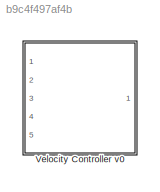
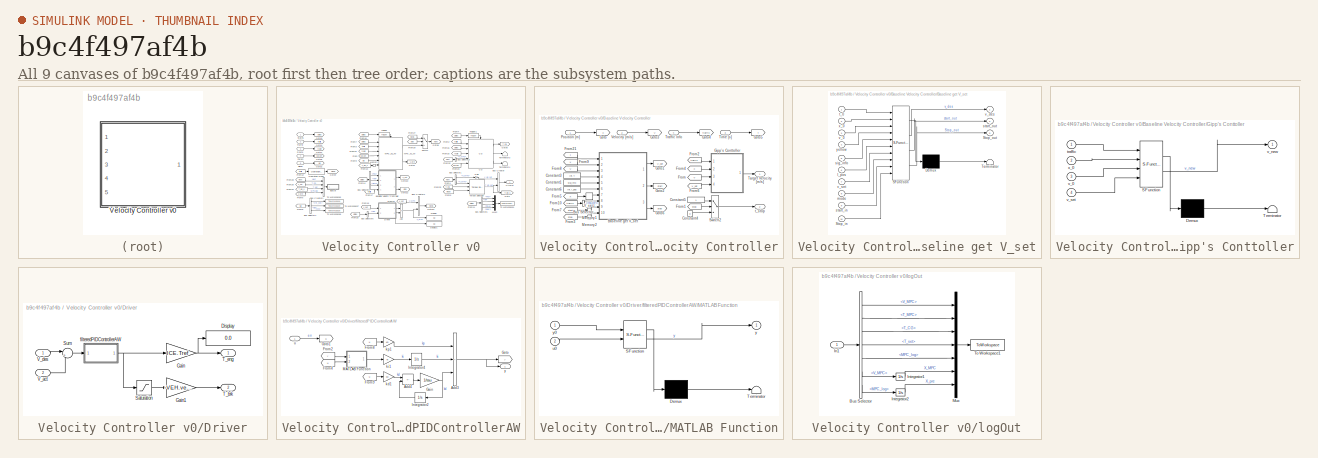
[diagram: thumbnail index - all 9 canvases of the model, root first then tree order]
MODEL slx_b9c4f497af4b
KIND library
CONFIG AbsTol = auto
CONFIG EnableMultiTasking = off
CONFIG FixedStep = auto
CONFIG MaxStep = auto
CONFIG MinStep = auto
CONFIG RelTol = 1e-3
CONFIG SampleTimeConstraint = Unconstrained
CONFIG Solver = VariableStepAuto
CONFIG SolverName = VariableStepAuto
CONFIG StartTime = 0.0
CONFIG StopTime = 10.0
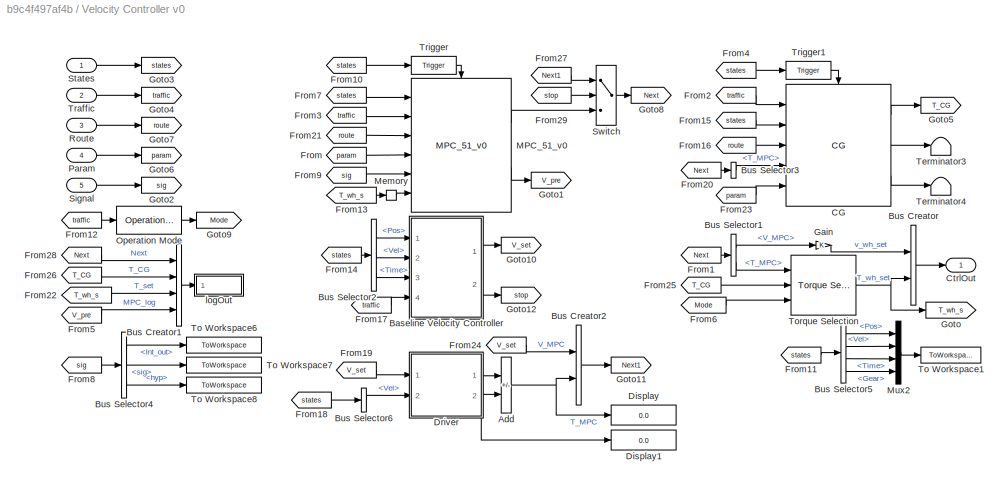
BLOCK [SubSystem] Velocity Controller v0
  Ports = [5, 1]
  RequestExecContextInheritance = off
  TreatAsAtomicUnit = on
BLOCK [Sum] Velocity Controller v0/Add
  IconShape = rectangular
  Inputs = +-
  Ports = [2, 1]
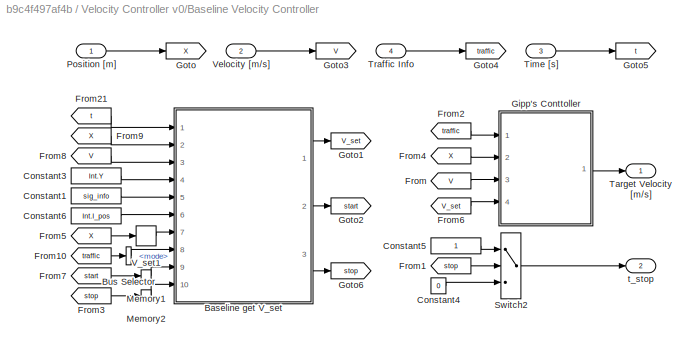
BLOCK [SubSystem] Velocity Controller v0/Baseline Velocity Controller
  Ports = [4, 2]
  RequestExecContextInheritance = off
BLOCK [SubSystem] Velocity Controller v0/Baseline Velocity Controller/Baseline get V_set
  ErrorFcn = Stateflow.Translate.translate
  NameLocation = top
  PermitHierarchicalResolution = ExplicitOnly
  Ports = [10, 3]
  RequestExecContextInheritance = off
  SFBlockType = MATLAB Function
  TreatAsAtomicUnit = on
BLOCK [Demux] Velocity Controller v0/Baseline Velocity Controller/Baseline get V_set/ Demux 
  Outputs = 1
  Ports = [1, 1]
BLOCK [S-Function] Velocity Controller v0/Baseline Velocity Controller/Baseline get V_set/ SFunction 
  EnableBusSupport = off
  FunctionName = sf_sfun
  PortCounts = [10 4]
  Ports = [10, 4]
  SFcnIsStateOwnerBlock = off
  SFunctionDeploymentMode = off
  Tag = Stateflow S-Function 3
BLOCK [Terminator] Velocity Controller v0/Baseline Velocity Controller/Baseline get V_set/ Terminator 
BLOCK [Inport] Velocity Controller v0/Baseline Velocity Controller/Baseline get V_set/I_pos
  Port = 6
BLOCK [Inport] Velocity Controller v0/Baseline Velocity Controller/Baseline get V_set/Stop_in
  Port = 10
BLOCK [Outport] Velocity Controller v0/Baseline Velocity Controller/Baseline get V_set/Stop_out
  Port = 3
  VectorParamsAs1DForOutWhenUnconnected = off
BLOCK [Inport] Velocity Controller v0/Baseline Velocity Controller/Baseline get V_set/mode
  Port = 8
BLOCK [Inport] Velocity Controller v0/Baseline Velocity Controller/Baseline get V_set/sig_info
  Port = 5
BLOCK [Inport] Velocity Controller v0/Baseline Velocity Controller/Baseline get V_set/start_in
  Port = 9
BLOCK [Outport] Velocity Controller v0/Baseline Velocity Controller/Baseline get V_set/start_out
  Port = 2
  VectorParamsAs1DForOutWhenUnconnected = off
BLOCK [Inport] Velocity Controller v0/Baseline Velocity Controller/Baseline get V_set/t_0
BLOCK [Inport] Velocity Controller v0/Baseline Velocity Controller/Baseline get V_set/v_0
  Port = 3
BLOCK [Outport] Velocity Controller v0/Baseline Velocity Controller/Baseline get V_set/v_des
  VectorParamsAs1DForOutWhenUnconnected = off
BLOCK [Inport] Velocity Controller v0/Baseline Velocity Controller/Baseline get V_set/v_set
  Port = 7
BLOCK [Inport] Velocity Controller v0/Baseline Velocity Controller/Baseline get V_set/x_0
  Port = 2
BLOCK [Inport] Velocity Controller v0/Baseline Velocity Controller/Baseline get V_set/yellow
  Port = 4
BLOCK [BusSelector] Velocity Controller v0/Baseline Velocity Controller/Bus Selector
  OutputSignals = mode
  Ports = [1, 1]
BLOCK [Constant] Velocity Controller v0/Baseline Velocity Controller/Constant1
  Value = sig_info
BLOCK [Constant] Velocity Controller v0/Baseline Velocity Controller/Constant3
  Value = Int.Y
BLOCK [Constant] Velocity Controller v0/Baseline Velocity Controller/Constant4
  Value = 0
BLOCK [Constant] Velocity Controller v0/Baseline Velocity Controller/Constant5
BLOCK [Constant] Velocity Controller v0/Baseline Velocity Controller/Constant6
  Value = Int.I_pos
BLOCK [From] Velocity Controller v0/Baseline Velocity Controller/From
  GotoTag = V
BLOCK [From] Velocity Controller v0/Baseline Velocity Controller/From1
  GotoTag = stop
BLOCK [From] Velocity Controller v0/Baseline Velocity Controller/From10
  GotoTag = traffic
BLOCK [From] Velocity Controller v0/Baseline Velocity Controller/From2
  GotoTag = traffic
BLOCK [From] Velocity Controller v0/Baseline Velocity Controller/From21
  GotoTag = t
BLOCK [From] Velocity Controller v0/Baseline Velocity Controller/From3
  GotoTag = stop
BLOCK [From] Velocity Controller v0/Baseline Velocity Controller/From4
  GotoTag = X
BLOCK [From] Velocity Controller v0/Baseline Velocity Controller/From5
  GotoTag = X
BLOCK [From] Velocity Controller v0/Baseline Velocity Controller/From6
  GotoTag = V_set
BLOCK [From] Velocity Controller v0/Baseline Velocity Controller/From7
  GotoTag = start
BLOCK [From] Velocity Controller v0/Baseline Velocity Controller/From8
  GotoTag = V
BLOCK [From] Velocity Controller v0/Baseline Velocity Controller/From9
  GotoTag = X
BLOCK [SubSystem] Velocity Controller v0/Baseline Velocity Controller/Gipp's Conttoller
  ErrorFcn = Stateflow.Translate.translate
  NameLocation = top
  PermitHierarchicalResolution = ExplicitOnly
  Ports = [4, 1]
  RequestExecContextInheritance = off
  SFBlockType = MATLAB Function
  TreatAsAtomicUnit = on
BLOCK [Demux] Velocity Controller v0/Baseline Velocity Controller/Gipp's Conttoller/ Demux 
  Outputs = 1
  Ports = [1, 1]
BLOCK [S-Function] Velocity Controller v0/Baseline Velocity Controller/Gipp's Conttoller/ SFunction 
  EnableBusSupport = off
  FunctionName = sf_sfun
  PortCounts = [4 2]
  Ports = [4, 2]
  SFcnIsStateOwnerBlock = off
  SFunctionDeploymentMode = off
  Tag = Stateflow S-Function 19
BLOCK [Terminator] Velocity Controller v0/Baseline Velocity Controller/Gipp's Conttoller/ Terminator 
BLOCK [Inport] Velocity Controller v0/Baseline Velocity Controller/Gipp's Conttoller/traffic
BLOCK [Inport] Velocity Controller v0/Baseline Velocity Controller/Gipp's Conttoller/v_0
  Port = 3
BLOCK [Outport] Velocity Controller v0/Baseline Velocity Controller/Gipp's Conttoller/v_new
  VectorParamsAs1DForOutWhenUnconnected = off
BLOCK [Inport] Velocity Controller v0/Baseline Velocity Controller/Gipp's Conttoller/v_set
  Port = 4
BLOCK [Inport] Velocity Controller v0/Baseline Velocity Controller/Gipp's Conttoller/x_0
  Port = 2
BLOCK [Goto] Velocity Controller v0/Baseline Velocity Controller/Goto
  GotoTag = X
BLOCK [Goto] Velocity Controller v0/Baseline Velocity Controller/Goto1
  GotoTag = V_set
BLOCK [Goto] Velocity Controller v0/Baseline Velocity Controller/Goto2
  GotoTag = start
BLOCK [Goto] Velocity Controller v0/Baseline Velocity Controller/Goto3
  GotoTag = V
BLOCK [Goto] Velocity Controller v0/Baseline Velocity Controller/Goto4
  GotoTag = traffic
BLOCK [Goto] Velocity Controller v0/Baseline Velocity Controller/Goto5
  GotoTag = t
BLOCK [Goto] Velocity Controller v0/Baseline Velocity Controller/Goto6
  GotoTag = stop
BLOCK [Memory] Velocity Controller v0/Baseline Velocity Controller/Memory1
  InitialCondition = [0 0]
BLOCK [Memory] Velocity Controller v0/Baseline Velocity Controller/Memory2
BLOCK [Inport] Velocity Controller v0/Baseline Velocity Controller/Position [m]
BLOCK [Switch] Velocity Controller v0/Baseline Velocity Controller/Switch2
  Criteria = u2 ~= 0
  InputSameDT = off
  SaturateOnIntegerOverflow = off
BLOCK [Outport] Velocity Controller v0/Baseline Velocity Controller/Target Velocity [m//s]
  VectorParamsAs1DForOutWhenUnconnected = off
BLOCK [Inport] Velocity Controller v0/Baseline Velocity Controller/Time [s]
  Port = 3
BLOCK [Inport] Velocity Controller v0/Baseline Velocity Controller/Traffic Info
  Port = 4
BLOCK [Lookup_n-D] Velocity Controller v0/Baseline Velocity Controller/V_set1
  BreakpointsForDimension1 = UNCC.X_vec
  ExtrapMethod = Clip
  InterpMethod = Flat
  NumberOfTableDimensions = 1
  Ports = [1, 1]
  Table = UNCC.V_lim
BLOCK [Inport] Velocity Controller v0/Baseline Velocity Controller/Velocity [m//s]
  Port = 2
BLOCK [Outport] Velocity Controller v0/Baseline Velocity Controller/t_stop
  Port = 2
  VectorParamsAs1DForOutWhenUnconnected = off
BLOCK [BusCreator] Velocity Controller v0/Bus Creator
  DisplayOption = bar
  InheritFromInputs = on
  Inputs = 2
  Ports = [2, 1]
BLOCK [BusCreator] Velocity Controller v0/Bus Creator1
  DisplayOption = bar
  InheritFromInputs = on
  Inputs = 4
  Ports = [4, 1]
BLOCK [BusCreator] Velocity Controller v0/Bus Creator2
  DisplayOption = bar
  InheritFromInputs = on
  Inputs = 2
  Ports = [2, 1]
BLOCK [BusSelector] Velocity Controller v0/Bus Selector1
  OutputSignals = V_MPC,T_MPC
  Ports = [1, 2]
BLOCK [BusSelector] Velocity Controller v0/Bus Selector2
  OutputSignals = Pos,Vel,Time
  Ports = [1, 3]
BLOCK [BusSelector] Velocity Controller v0/Bus Selector3
  OutputSignals = T_MPC
  Ports = [1, 1]
BLOCK [BusSelector] Velocity Controller v0/Bus Selector4
  OutputSignals = Int_out,sig,hyp
  Ports = [1, 3]
BLOCK [BusSelector] Velocity Controller v0/Bus Selector5
  OutputSignals = Pos,Vel,Time,Gear
  Ports = [1, 4]
BLOCK [BusSelector] Velocity Controller v0/Bus Selector6
  OutputSignals = Vel
  Ports = [1, 1]
BLOCK [Reference] Velocity Controller v0/CG  REF=Thesis_Sublibraries/CG
  Ports = [5, 3, 0, 1]
  SourceBlock = Thesis_Sublibraries/CG
BLOCK [Outport] Velocity Controller v0/CtrlOut
  VectorParamsAs1DForOutWhenUnconnected = off
BLOCK [Display] Velocity Controller v0/Display
  Decimation = 1
  Ports = [1]
BLOCK [Display] Velocity Controller v0/Display1
  Decimation = 1
  Ports = [1]
BLOCK [SubSystem] Velocity Controller v0/Driver
  Ports = [2, 2]
  RequestExecContextInheritance = off
BLOCK [Display] Velocity Controller v0/Driver/Display
  Decimation = 1
  Ports = [1]
BLOCK [Gain] Velocity Controller v0/Driver/Gain
  Gain = ICE.Tref
BLOCK [Gain] Velocity Controller v0/Driver/Gain1
  Gain = -VEH.vehicleMass*9.8*VEH.mu*VEH.tireRad
BLOCK [Saturate] Velocity Controller v0/Driver/Saturation
  LowerLimit = -1
  UpperLimit = 0
BLOCK [Sum] Velocity Controller v0/Driver/Sum
  Inputs = |+-
  Ports = [2, 1]
BLOCK [Outport] Velocity Controller v0/Driver/T_brk
  Port = 2
  VectorParamsAs1DForOutWhenUnconnected = off
BLOCK [Outport] Velocity Controller v0/Driver/T_eng
  VectorParamsAs1DForOutWhenUnconnected = off
BLOCK [Inport] Velocity Controller v0/Driver/V_act
  Port = 2
BLOCK [Inport] Velocity Controller v0/Driver/V_des
BLOCK [SubSystem] Velocity Controller v0/Driver/filteredPIDControllerAW
  Ports = [1, 1]
  RequestExecContextInheritance = off
BLOCK [Sum] Velocity Controller v0/Driver/filteredPIDControllerAW/Add3
  IconShape = rectangular
  Inputs = +++
  Ports = [3, 1]
BLOCK [Sum] Velocity Controller v0/Driver/filteredPIDControllerAW/Add4
  IconShape = rectangular
  Inputs = +-
  Ports = [2, 1]
BLOCK [From] Velocity Controller v0/Driver/filteredPIDControllerAW/From2
  GotoTag = y
BLOCK [From] Velocity Controller v0/Driver/filteredPIDControllerAW/From4
  GotoTag = u
BLOCK [From] Velocity Controller v0/Driver/filteredPIDControllerAW/From8
  GotoTag = u
BLOCK [From] Velocity Controller v0/Driver/filteredPIDControllerAW/From9
  GotoTag = u
BLOCK [Gain] Velocity Controller v0/Driver/filteredPIDControllerAW/Gain
  Gain = 1/tau
BLOCK [Goto] Velocity Controller v0/Driver/filteredPIDControllerAW/Goto
  GotoTag = y
BLOCK [Goto] Velocity Controller v0/Driver/filteredPIDControllerAW/Goto1
  GotoTag = u
BLOCK [Integrator] Velocity Controller v0/Driver/filteredPIDControllerAW/Integrator2
  Ports = [1, 1]
BLOCK [Integrator] Velocity Controller v0/Driver/filteredPIDControllerAW/Integrator4
  Ports = [1, 1]
BLOCK [SubSystem] Velocity Controller v0/Driver/filteredPIDControllerAW/MATLAB Function
  ErrorFcn = Stateflow.Translate.translate
  PermitHierarchicalResolution = ExplicitOnly
  Ports = [2, 1]
  RequestExecContextInheritance = off
  SFBlockType = MATLAB Function
  TreatAsAtomicUnit = on
BLOCK [Demux] Velocity Controller v0/Driver/filteredPIDControllerAW/MATLAB Function/ Demux 
  Outputs = 1
  Ports = [1, 1]
BLOCK [S-Function] Velocity Controller v0/Driver/filteredPIDControllerAW/MATLAB Function/ SFunction 
  EnableBusSupport = on
  FunctionName = sf_sfun
  Parameters = cMax,cMin
  PortCounts = [2 2]
  Ports = [2, 2]
  SFcnIsStateOwnerBlock = off
  SFunctionDeploymentMode = off
  Tag = Stateflow S-Function 1
BLOCK [Terminator] Velocity Controller v0/Driver/filteredPIDControllerAW/MATLAB Function/ Terminator 
BLOCK [Inport] Velocity Controller v0/Driver/filteredPIDControllerAW/MATLAB Function/u0
  Port = 2
BLOCK [Outport] Velocity Controller v0/Driver/filteredPIDControllerAW/MATLAB Function/y
BLOCK [Inport] Velocity Controller v0/Driver/filteredPIDControllerAW/MATLAB Function/y0
BLOCK [Gain] Velocity Controller v0/Driver/filteredPIDControllerAW/kd1
  Gain = kd
BLOCK [Gain] Velocity Controller v0/Driver/filteredPIDControllerAW/ki1
  Gain = ki
BLOCK [Gain] Velocity Controller v0/Driver/filteredPIDControllerAW/kp1
  Gain = kp
BLOCK [Inport] Velocity Controller v0/Driver/filteredPIDControllerAW/u
  PortDimensions = 1
BLOCK [Outport] Velocity Controller v0/Driver/filteredPIDControllerAW/y
  PortDimensions = 1
  VectorParamsAs1DForOutWhenUnconnected = off
BLOCK [From] Velocity Controller v0/From
  GotoTag = param
BLOCK [From] Velocity Controller v0/From1
  GotoTag = Next
BLOCK [From] Velocity Controller v0/From10
  GotoTag = states
BLOCK [From] Velocity Controller v0/From11
  GotoTag = states
BLOCK [From] Velocity Controller v0/From12
  GotoTag = traffic
BLOCK [From] Velocity Controller v0/From13
  GotoTag = T_wh_s
BLOCK [From] Velocity Controller v0/From14
  GotoTag = states
BLOCK [From] Velocity Controller v0/From15
  GotoTag = states
BLOCK [From] Velocity Controller v0/From16
  GotoTag = route
BLOCK [From] Velocity Controller v0/From17
  GotoTag = traffic
BLOCK [From] Velocity Controller v0/From18
  GotoTag = states
BLOCK [From] Velocity Controller v0/From19
  GotoTag = V_set
BLOCK [From] Velocity Controller v0/From2
  GotoTag = traffic
BLOCK [From] Velocity Controller v0/From20
  GotoTag = Next
BLOCK [From] Velocity Controller v0/From21
  GotoTag = route
BLOCK [From] Velocity Controller v0/From22
  GotoTag = T_wh_s
BLOCK [From] Velocity Controller v0/From23
  GotoTag = param
BLOCK [From] Velocity Controller v0/From24
  GotoTag = V_set
BLOCK [From] Velocity Controller v0/From25
  GotoTag = T_CG
BLOCK [From] Velocity Controller v0/From26
  GotoTag = T_CG
BLOCK [From] Velocity Controller v0/From27
  GotoTag = Next1
BLOCK [From] Velocity Controller v0/From28
  GotoTag = Next
BLOCK [From] Velocity Controller v0/From29
  GotoTag = stop
BLOCK [From] Velocity Controller v0/From3
  GotoTag = traffic
BLOCK [From] Velocity Controller v0/From4
  GotoTag = states
BLOCK [From] Velocity Controller v0/From5
  GotoTag = V_pre
BLOCK [From] Velocity Controller v0/From6
  GotoTag = Mode
BLOCK [From] Velocity Controller v0/From7
  GotoTag = states
BLOCK [From] Velocity Controller v0/From8
  GotoTag = sig
BLOCK [From] Velocity Controller v0/From9
  GotoTag = sig
BLOCK [Gain] Velocity Controller v0/Gain
BLOCK [Goto] Velocity Controller v0/Goto
  GotoTag = T_wh_s
BLOCK [Goto] Velocity Controller v0/Goto1
  GotoTag = V_pre
BLOCK [Goto] Velocity Controller v0/Goto10
  GotoTag = V_set
BLOCK [Goto] Velocity Controller v0/Goto11
  GotoTag = Next1
BLOCK [Goto] Velocity Controller v0/Goto12
  GotoTag = stop
BLOCK [Goto] Velocity Controller v0/Goto2
  GotoTag = sig
BLOCK [Goto] Velocity Controller v0/Goto3
  GotoTag = states
BLOCK [Goto] Velocity Controller v0/Goto4
  GotoTag = traffic
BLOCK [Goto] Velocity Controller v0/Goto5
  GotoTag = T_CG
BLOCK [Goto] Velocity Controller v0/Goto6
  GotoTag = param
BLOCK [Goto] Velocity Controller v0/Goto7
  GotoTag = route
BLOCK [Goto] Velocity Controller v0/Goto8
  GotoTag = Next
BLOCK [Goto] Velocity Controller v0/Goto9
  GotoTag = Mode
BLOCK [Reference] Velocity Controller v0/MPC_51_v0  REF=MPC_51_v0_CL/MPC_51_v0
  Ports = [6, 2, 0, 1]
  SourceBlock = MPC_51_v0_CL/MPC_51_v0
BLOCK [Memory] Velocity Controller v0/Memory
  InitialCondition = 11
BLOCK [Mux] Velocity Controller v0/Mux2
  DisplayOption = bar
  Ports = [4, 1]
BLOCK [Reference] Velocity Controller v0/Operation Mode  REF=Thesis_Sublibraries/Operation Mode
  Ports = [1, 1]
  SourceBlock = Thesis_Sublibraries/Operation Mode
BLOCK [Inport] Velocity Controller v0/Param
  Port = 4
BLOCK [Inport] Velocity Controller v0/Route
  Port = 3
BLOCK [Inport] Velocity Controller v0/Signal
  Port = 5
BLOCK [Inport] Velocity Controller v0/States
BLOCK [Switch] Velocity Controller v0/Switch
  Criteria = u2 ~= 0
  InputSameDT = off
  SaturateOnIntegerOverflow = off
  ZeroCross = off
BLOCK [Terminator] Velocity Controller v0/Terminator3
BLOCK [Terminator] Velocity Controller v0/Terminator4
BLOCK [ToWorkspace] Velocity Controller v0/To Workspace1
  FixptAsFi = on
  MaxDataPoints = inf
  Ports = [1]
  SampleTime = -1
  VariableName = States
BLOCK [ToWorkspace] Velocity Controller v0/To Workspace6
  MaxDataPoints = inf
  Ports = [1]
  SampleTime = -1
  VariableName = Int_out
BLOCK [ToWorkspace] Velocity Controller v0/To Workspace7
  MaxDataPoints = inf
  Ports = [1]
  SampleTime = -1
  VariableName = Sig_out
BLOCK [ToWorkspace] Velocity Controller v0/To Workspace8
  MaxDataPoints = inf
  Ports = [1]
  SampleTime = -1
  VariableName = hyp_out
BLOCK [Reference] Velocity Controller v0/Torque Selection  REF=Thesis_Sublibraries/Torque Selection
  Ports = [3, 1]
  SourceBlock = Thesis_Sublibraries/Torque Selection
BLOCK [Inport] Velocity Controller v0/Traffic
  Port = 2
BLOCK [Reference] Velocity Controller v0/Trigger  REF=Thesis_Sublibraries/Trigger
  NameLocation = top
  Ports = [1, 1]
  SourceBlock = Thesis_Sublibraries/Trigger
BLOCK [Reference] Velocity Controller v0/Trigger1  REF=Thesis_Sublibraries/Trigger
  NameLocation = top
  Ports = [1, 1]
  SourceBlock = Thesis_Sublibraries/Trigger
BLOCK [SubSystem] Velocity Controller v0/logOut
  Ports = [1]
  RequestExecContextInheritance = off
BLOCK [BusSelector] Velocity Controller v0/logOut/Bus Selector
  OutputSignals = Next.V_MPC,Next.T_MPC,T_CG,T_set,MPC_log,Next.V_MPC,MPC_log
  Ports = [1, 7]
BLOCK [Inport] Velocity Controller v0/logOut/In1
BLOCK [Integrator] Velocity Controller v0/logOut/Integrator1
  Ports = [1, 1]
BLOCK [Integrator] Velocity Controller v0/logOut/Integrator2
  Ports = [1, 1]
BLOCK [Mux] Velocity Controller v0/logOut/Mux
  DisplayOption = bar
  Inputs = 7
  Ports = [7, 1]
BLOCK [ToWorkspace] Velocity Controller v0/logOut/To Workspace1
  MaxDataPoints = inf
  Ports = [1]
  SampleTime = -1
  SaveFormat = Structure With Time
  VariableName = Vel_Ctrl_Out
NET Velocity Controller v0/Add:1 -> Velocity Controller v0/Bus Creator2:2, Velocity Controller v0/Display:1
LINE Velocity Controller v0/Baseline Velocity Controller/Baseline get V_set:1 -> Velocity Controller v0/Baseline Velocity Controller/Goto1:1
LINE Velocity Controller v0/Baseline Velocity Controller/Baseline get V_set:2 -> Velocity Controller v0/Baseline Velocity Controller/Goto2:1
LINE Velocity Controller v0/Baseline Velocity Controller/Baseline get V_set:3 -> Velocity Controller v0/Baseline Velocity Controller/Goto6:1
LINE Velocity Controller v0/Baseline Velocity Controller/Bus Selector:1 -> Velocity Controller v0/Baseline Velocity Controller/Baseline get V_set:8
LINE Velocity Controller v0/Baseline Velocity Controller/Constant1:1 -> Velocity Controller v0/Baseline Velocity Controller/Baseline get V_set:5
LINE Velocity Controller v0/Baseline Velocity Controller/Constant3:1 -> Velocity Controller v0/Baseline Velocity Controller/Baseline get V_set:4
LINE Velocity Controller v0/Baseline Velocity Controller/Constant4:1 -> Velocity Controller v0/Baseline Velocity Controller/Switch2:3
LINE Velocity Controller v0/Baseline Velocity Controller/Constant5:1 -> Velocity Controller v0/Baseline Velocity Controller/Switch2:1
LINE Velocity Controller v0/Baseline Velocity Controller/Constant6:1 -> Velocity Controller v0/Baseline Velocity Controller/Baseline get V_set:6
LINE Velocity Controller v0/Baseline Velocity Controller/From10:1 -> Velocity Controller v0/Baseline Velocity Controller/Bus Selector:1
LINE Velocity Controller v0/Baseline Velocity Controller/From1:1 -> Velocity Controller v0/Baseline Velocity Controller/Switch2:2
LINE Velocity Controller v0/Baseline Velocity Controller/From21:1 -> Velocity Controller v0/Baseline Velocity Controller/Baseline get V_set:1
LINE Velocity Controller v0/Baseline Velocity Controller/From2:1 -> Velocity Controller v0/Baseline Velocity Controller/Gipp's Conttoller:1
LINE Velocity Controller v0/Baseline Velocity Controller/From3:1 -> Velocity Controller v0/Baseline Velocity Controller/Memory2:1
LINE Velocity Controller v0/Baseline Velocity Controller/From4:1 -> Velocity Controller v0/Baseline Velocity Controller/Gipp's Conttoller:2
LINE Velocity Controller v0/Baseline Velocity Controller/From5:1 -> Velocity Controller v0/Baseline Velocity Controller/V_set1:1
LINE Velocity Controller v0/Baseline Velocity Controller/From6:1 -> Velocity Controller v0/Baseline Velocity Controller/Gipp's Conttoller:4
LINE Velocity Controller v0/Baseline Velocity Controller/From7:1 -> Velocity Controller v0/Baseline Velocity Controller/Memory1:1
LINE Velocity Controller v0/Baseline Velocity Controller/From8:1 -> Velocity Controller v0/Baseline Velocity Controller/Baseline get V_set:3
LINE Velocity Controller v0/Baseline Velocity Controller/From9:1 -> Velocity Controller v0/Baseline Velocity Controller/Baseline get V_set:2
LINE Velocity Controller v0/Baseline Velocity Controller/From:1 -> Velocity Controller v0/Baseline Velocity Controller/Gipp's Conttoller:3
LINE Velocity Controller v0/Baseline Velocity Controller/Gipp's Conttoller:1 -> Velocity Controller v0/Baseline Velocity Controller/Target Velocity [m//s]:1
LINE Velocity Controller v0/Baseline Velocity Controller/Memory1:1 -> Velocity Controller v0/Baseline Velocity Controller/Baseline get V_set:9
LINE Velocity Controller v0/Baseline Velocity Controller/Memory2:1 -> Velocity Controller v0/Baseline Velocity Controller/Baseline get V_set:10
LINE Velocity Controller v0/Baseline Velocity Controller/Position [m]:1 -> Velocity Controller v0/Baseline Velocity Controller/Goto:1
LINE Velocity Controller v0/Baseline Velocity Controller/Switch2:1 -> Velocity Controller v0/Baseline Velocity Controller/t_stop:1
LINE Velocity Controller v0/Baseline Velocity Controller/Time [s]:1 -> Velocity Controller v0/Baseline Velocity Controller/Goto5:1
LINE Velocity Controller v0/Baseline Velocity Controller/Traffic Info:1 -> Velocity Controller v0/Baseline Velocity Controller/Goto4:1
LINE Velocity Controller v0/Baseline Velocity Controller/V_set1:1 -> Velocity Controller v0/Baseline Velocity Controller/Baseline get V_set:7
LINE Velocity Controller v0/Baseline Velocity Controller/Velocity [m//s]:1 -> Velocity Controller v0/Baseline Velocity Controller/Goto3:1
LINE Velocity Controller v0/Baseline Velocity Controller:1 -> Velocity Controller v0/Goto10:1
LINE Velocity Controller v0/Baseline Velocity Controller:2 -> Velocity Controller v0/Goto12:1
LINE Velocity Controller v0/Bus Creator1:1 -> Velocity Controller v0/logOut:1
LINE Velocity Controller v0/Bus Creator2:1 -> Velocity Controller v0/Goto11:1
LINE Velocity Controller v0/Bus Creator:1 -> Velocity Controller v0/CtrlOut:1
LINE Velocity Controller v0/Bus Selector1:1 -> Velocity Controller v0/Gain:1
LINE Velocity Controller v0/Bus Selector1:2 -> Velocity Controller v0/Torque Selection:1
LINE Velocity Controller v0/Bus Selector2:1 -> Velocity Controller v0/Baseline Velocity Controller:1
LINE Velocity Controller v0/Bus Selector2:2 -> Velocity Controller v0/Baseline Velocity Controller:2
LINE Velocity Controller v0/Bus Selector2:3 -> Velocity Controller v0/Baseline Velocity Controller:3
LINE Velocity Controller v0/Bus Selector3:1 -> Velocity Controller v0/CG:4
LINE Velocity Controller v0/Bus Selector4:1 -> Velocity Controller v0/To Workspace6:1
LINE Velocity Controller v0/Bus Selector4:2 -> Velocity Controller v0/To Workspace7:1
LINE Velocity Controller v0/Bus Selector4:3 -> Velocity Controller v0/To Workspace8:1
LINE Velocity Controller v0/Bus Selector5:1 -> Velocity Controller v0/Mux2:1
LINE Velocity Controller v0/Bus Selector5:2 -> Velocity Controller v0/Mux2:2
LINE Velocity Controller v0/Bus Selector5:3 -> Velocity Controller v0/Mux2:3
LINE Velocity Controller v0/Bus Selector5:4 -> Velocity Controller v0/Mux2:4
LINE Velocity Controller v0/Bus Selector6:1 -> Velocity Controller v0/Driver:2
LINE Velocity Controller v0/CG:1 -> Velocity Controller v0/Goto5:1
LINE Velocity Controller v0/CG:2 -> Velocity Controller v0/Terminator3:1
LINE Velocity Controller v0/CG:3 -> Velocity Controller v0/Terminator4:1
LINE Velocity Controller v0/Driver/Gain1:1 -> Velocity Controller v0/Driver/T_brk:1
NET Velocity Controller v0/Driver/Gain:1 -> Velocity Controller v0/Driver/Display:1, Velocity Controller v0/Driver/T_eng:1
LINE Velocity Controller v0/Driver/Saturation:1 -> Velocity Controller v0/Driver/Gain1:1
LINE Velocity Controller v0/Driver/Sum:1 -> Velocity Controller v0/Driver/filteredPIDControllerAW:1
LINE Velocity Controller v0/Driver/V_act:1 -> Velocity Controller v0/Driver/Sum:2
LINE Velocity Controller v0/Driver/V_des:1 -> Velocity Controller v0/Driver/Sum:1
NET Velocity Controller v0/Driver/filteredPIDControllerAW:1 -> Velocity Controller v0/Driver/Gain:1, Velocity Controller v0/Driver/Saturation:1
LINE Velocity Controller v0/Driver:1 -> Velocity Controller v0/Add:1
NET Velocity Controller v0/Driver:2 -> Velocity Controller v0/Add:2, Velocity Controller v0/Display1:1
LINE Velocity Controller v0/From10:1 -> Velocity Controller v0/Trigger:1
LINE Velocity Controller v0/From11:1 -> Velocity Controller v0/Bus Selector5:1
LINE Velocity Controller v0/From12:1 -> Velocity Controller v0/Operation Mode:1
LINE Velocity Controller v0/From13:1 -> Velocity Controller v0/Memory:1
LINE Velocity Controller v0/From14:1 -> Velocity Controller v0/Bus Selector2:1
LINE Velocity Controller v0/From15:1 -> Velocity Controller v0/CG:2
LINE Velocity Controller v0/From16:1 -> Velocity Controller v0/CG:3
LINE Velocity Controller v0/From17:1 -> Velocity Controller v0/Baseline Velocity Controller:4
LINE Velocity Controller v0/From18:1 -> Velocity Controller v0/Bus Selector6:1
LINE Velocity Controller v0/From19:1 -> Velocity Controller v0/Driver:1
LINE Velocity Controller v0/From1:1 -> Velocity Controller v0/Bus Selector1:1
LINE Velocity Controller v0/From20:1 -> Velocity Controller v0/Bus Selector3:1
LINE Velocity Controller v0/From21:1 -> Velocity Controller v0/MPC_51_v0:3
LINE Velocity Controller v0/From22:1 -> Velocity Controller v0/Bus Creator1:3
LINE Velocity Controller v0/From23:1 -> Velocity Controller v0/CG:5
LINE Velocity Controller v0/From24:1 -> Velocity Controller v0/Bus Creator2:1
LINE Velocity Controller v0/From25:1 -> Velocity Controller v0/Torque Selection:2
LINE Velocity Controller v0/From26:1 -> Velocity Controller v0/Bus Creator1:2
LINE Velocity Controller v0/From27:1 -> Velocity Controller v0/Switch:1
LINE Velocity Controller v0/From28:1 -> Velocity Controller v0/Bus Creator1:1
LINE Velocity Controller v0/From29:1 -> Velocity Controller v0/Switch:2
LINE Velocity Controller v0/From2:1 -> Velocity Controller v0/CG:1
LINE Velocity Controller v0/From3:1 -> Velocity Controller v0/MPC_51_v0:2
LINE Velocity Controller v0/From4:1 -> Velocity Controller v0/Trigger1:1
LINE Velocity Controller v0/From5:1 -> Velocity Controller v0/Bus Creator1:4
LINE Velocity Controller v0/From6:1 -> Velocity Controller v0/Torque Selection:3
LINE Velocity Controller v0/From7:1 -> Velocity Controller v0/MPC_51_v0:1
LINE Velocity Controller v0/From8:1 -> Velocity Controller v0/Bus Selector4:1
LINE Velocity Controller v0/From9:1 -> Velocity Controller v0/MPC_51_v0:5
LINE Velocity Controller v0/From:1 -> Velocity Controller v0/MPC_51_v0:4
LINE Velocity Controller v0/Gain:1 -> Velocity Controller v0/Bus Creator:1
LINE Velocity Controller v0/MPC_51_v0:1 -> Velocity Controller v0/Switch:3
LINE Velocity Controller v0/MPC_51_v0:2 -> Velocity Controller v0/Goto1:1
LINE Velocity Controller v0/Memory:1 -> Velocity Controller v0/MPC_51_v0:6
LINE Velocity Controller v0/Mux2:1 -> Velocity Controller v0/To Workspace1:1
LINE Velocity Controller v0/Operation Mode:1 -> Velocity Controller v0/Goto9:1
LINE Velocity Controller v0/Param:1 -> Velocity Controller v0/Goto6:1
LINE Velocity Controller v0/Route:1 -> Velocity Controller v0/Goto7:1
LINE Velocity Controller v0/Signal:1 -> Velocity Controller v0/Goto2:1
LINE Velocity Controller v0/States:1 -> Velocity Controller v0/Goto3:1
LINE Velocity Controller v0/Switch:1 -> Velocity Controller v0/Goto8:1
NET Velocity Controller v0/Torque Selection:1 -> Velocity Controller v0/Bus Creator:2, Velocity Controller v0/Goto:1
LINE Velocity Controller v0/Traffic:1 -> Velocity Controller v0/Goto4:1
LINE Velocity Controller v0/Trigger1:1 -> Velocity Controller v0/CG:trigger
LINE Velocity Controller v0/Trigger:1 -> Velocity Controller v0/MPC_51_v0:trigger
LINE Velocity Controller v0/logOut/Bus Selector:1 -> Velocity Controller v0/logOut/Mux:1
LINE Velocity Controller v0/logOut/Bus Selector:2 -> Velocity Controller v0/logOut/Mux:2
LINE Velocity Controller v0/logOut/Bus Selector:3 -> Velocity Controller v0/logOut/Mux:3
LINE Velocity Controller v0/logOut/Bus Selector:4 -> Velocity Controller v0/logOut/Mux:4
LINE Velocity Controller v0/logOut/Bus Selector:5 -> Velocity Controller v0/logOut/Mux:5
LINE Velocity Controller v0/logOut/Bus Selector:6 -> Velocity Controller v0/logOut/Integrator1:1
LINE Velocity Controller v0/logOut/Bus Selector:7 -> Velocity Controller v0/logOut/Integrator2:1
LINE Velocity Controller v0/logOut/In1:1 -> Velocity Controller v0/logOut/Bus Selector:1
LINE Velocity Controller v0/logOut/Integrator1:1 -> Velocity Controller v0/logOut/Mux:6
LINE Velocity Controller v0/logOut/Integrator2:1 -> Velocity Controller v0/logOut/Mux:7
LINE Velocity Controller v0/logOut/Mux:1 -> Velocity Controller v0/logOut/To Workspace1:1
note: NET lines group one-source signal fan-out (src -> all destinations, sorted); 1:1 wires keep LINE
CHART Velocity Controller v0/Driver/filteredPIDControllerAW/MATLAB Function states=1 transitions=1
  STATE_LABEL 'eML_blk_kernel()'
  STATE_LABEL 'SCRIPT:\nfunction y = fcn(y0, u0, cMax, cMin)\n\nif y0 > cMax\n    y1 = cMax; \nelseif y0 < cMin\n    y1 = cMin; \nelse\n    y1 = y0; \nend\n\nsat = y0-y1; \naw = exp(-1e5*sat^2); \ny = aw*u0; '
CHART Velocity Controller v0/Baseline Velocity Controller/Baseline get V_set states=1 transitions=1
  STATE_LABEL 'eML_blk_kernel()'
  STATE_LABEL 'SCRIPT:\nfunction [v_des,start_out,Stop_out] = fcn(t_0,x_0,v_0,yellow,sig_info,I_pos,v_set,mode,start_in,Stop_in)\n\nG = sig_info(:,:,2);                                    %   s - Intersection green phases \nCs = sig_info(:,:,3);                                   %   s - Cycle start times \nwindow = 150;                                           %   m - Driver sight range\ndt = .01;                    ...<+1885ch>'
CHART Velocity Controller v0/Baseline Velocity Controller/Gipp's Conttoller states=1 transitions=1
  STATE_LABEL 'eML_blk_kernel()'
  STATE_LABEL 'SCRIPT:\nfunction v_new  = fcn(traffic,x_0,v_0,v_set)\n\ntau = 0.75;                 %   s - Driver reaction time\na_n = 2;                    %   m/s^2 - Maximum acceleration\nb_n = -2*a_n;               %   m/s^2 - Maximum brake acceleration\nb_hat = -2;                 %   m/s^2 - Estimated lead vehicle brake acceleration\nt_n = 2;                    %   s - Safe following time\n\nx_lead = traffic(1);  ...<+654ch>'
CHART  states=0 transitions=0
CHART  states=0 transitions=0
CHART  states=0 transitions=0
